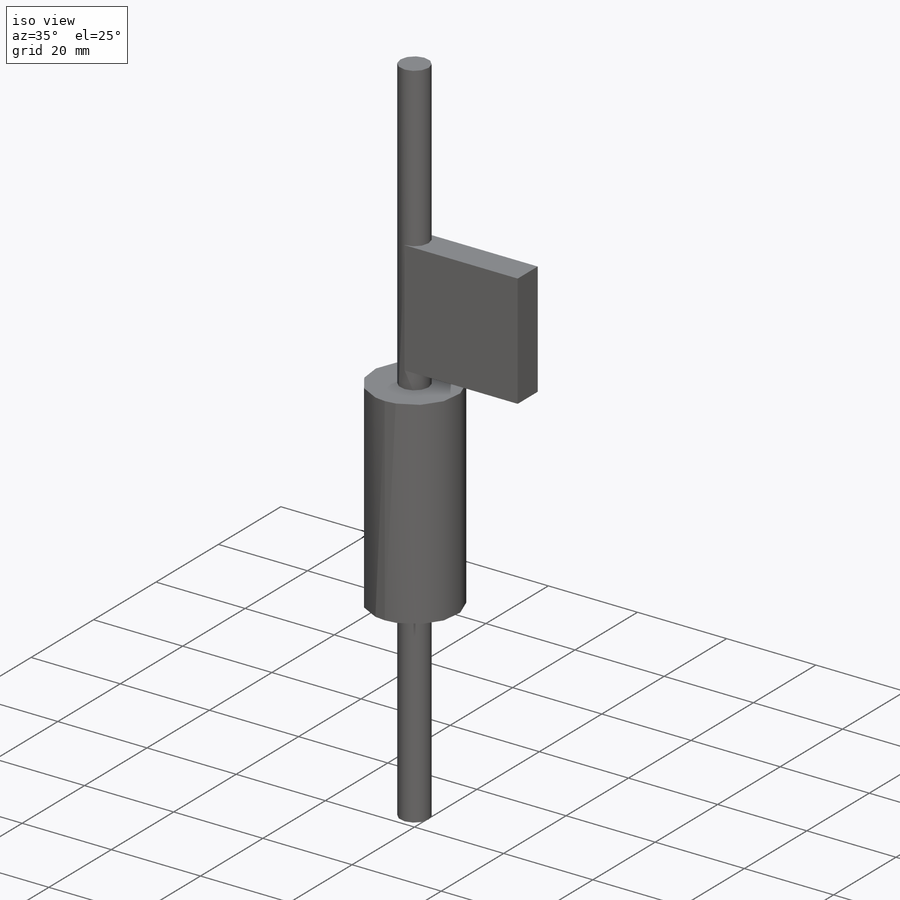
[diagram: iso view]
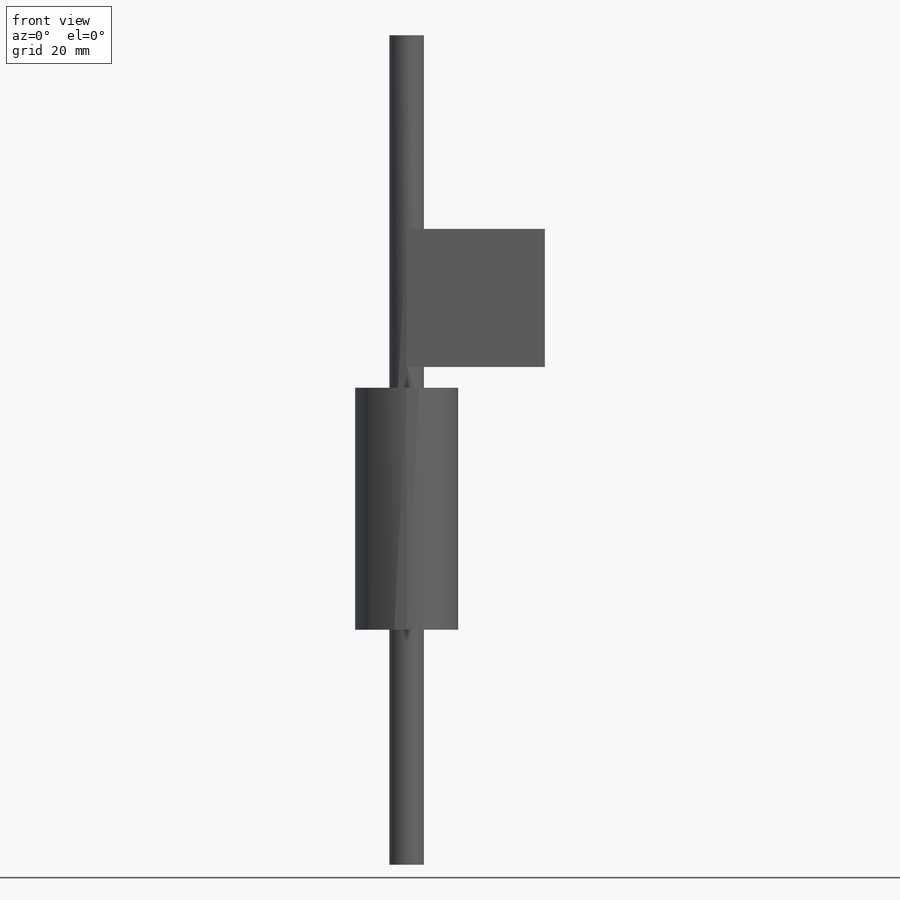
[diagram: front view]
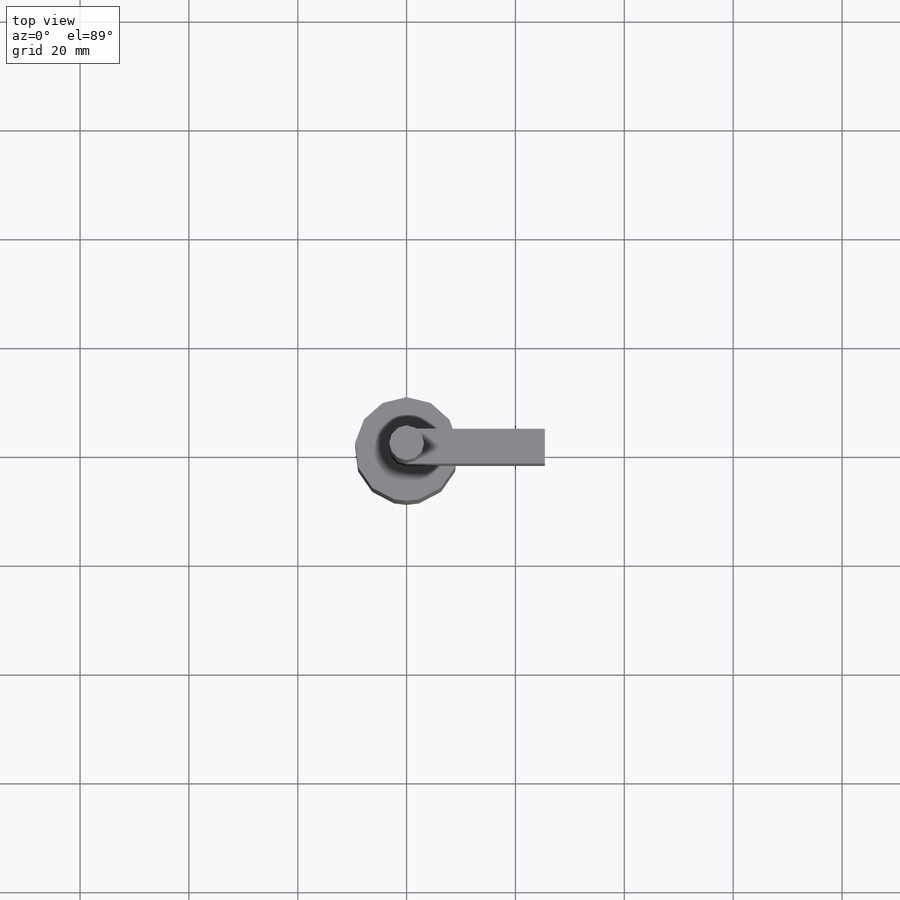
[diagram: top view]
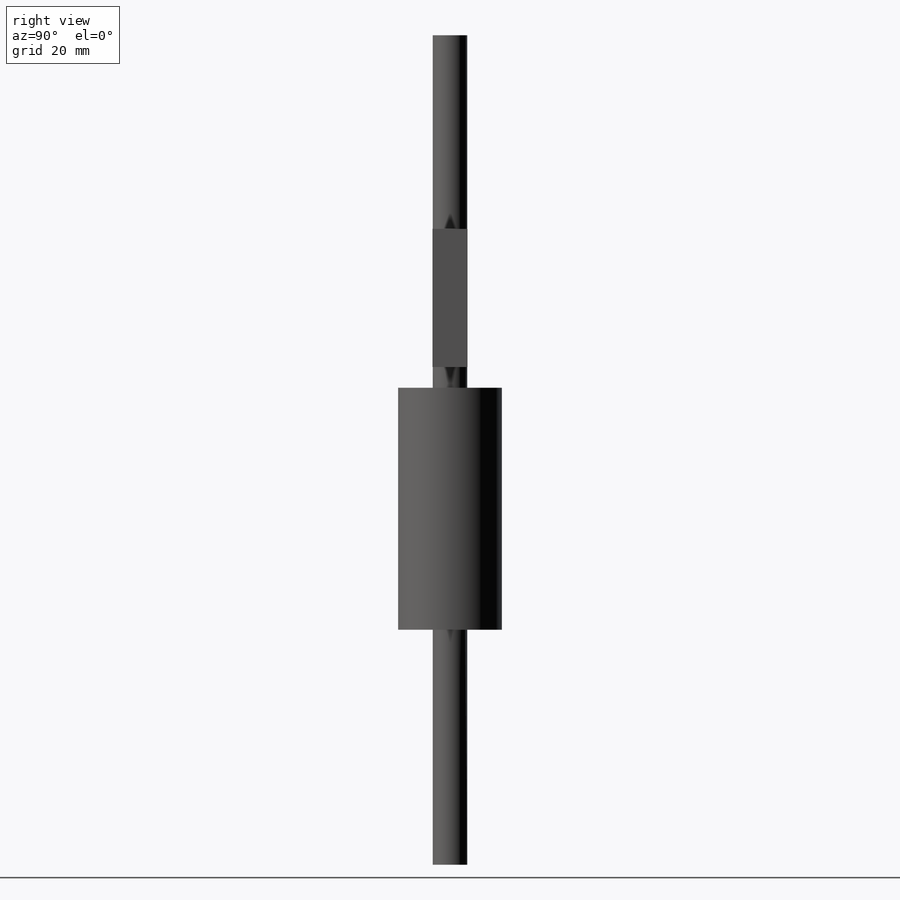
[diagram: right view]
SOLIDWORKS PART (.sldprt)
format: sldprt  version: not decoded by parser v0  size: 176,640 bytes
history: native  units: mm
features: sketch x3, extrude x3, material x1, plane x1 (+13 scaffold rows collapsed)
feature tree (21):
  scaffold x13  (default folders/planes/origin — collapsed)
  material  "Material <not specified>"
  sketch  "Sketch1"  dims[D1=6.35mm]
  extrude  "Boss-Extrude1"  Depth=152.4mm
  sketch  "Sketch2"  dims[D1=6.4135mm D2=~3.20675mm D3=25.4mm D4=35.56mm]
  extrude  "Boss-Extrude2"  Depth=25.4mm
  plane  "Plane1"  Offset=43.18mm
  sketch  "Sketch4"  dims[D1=19.05mm]
  extrude  "Boss-Extrude3"  Depth=44.45mm
decode coverage: 6 of 6 modeling features carry decoded parameters
note: ~ marks probable driven/reference dimensions
note: suppression state not decoded; provenance and decode notes live in map.json
